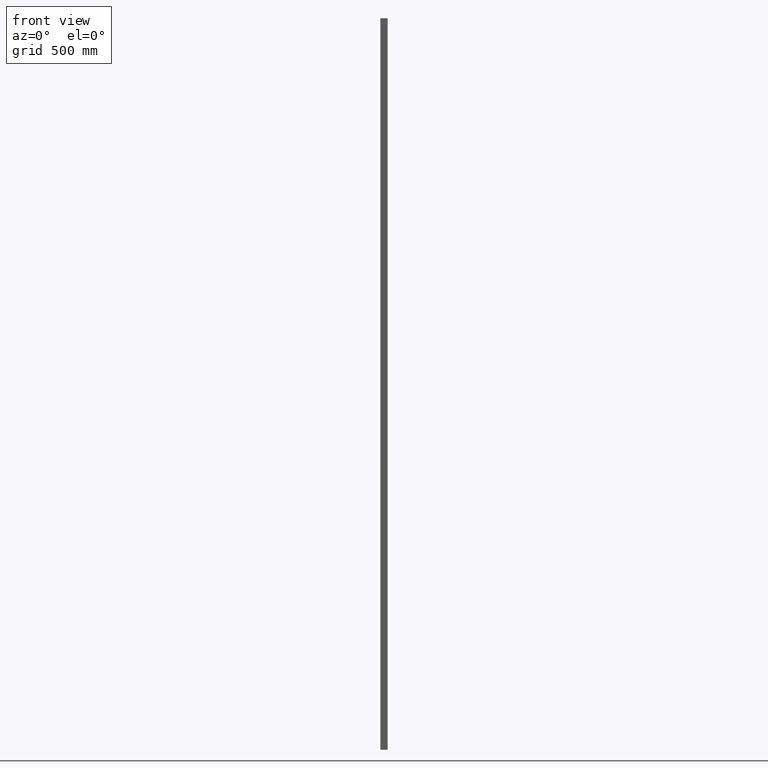
[diagram: clean part render]
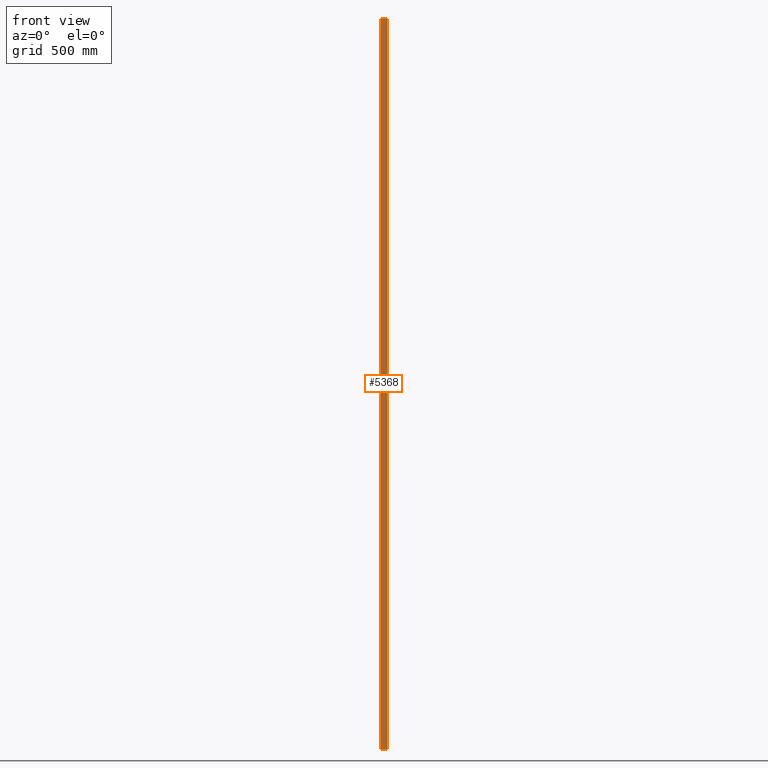
[diagram: same view with one face highlighted and labeled with its STEP entity id]
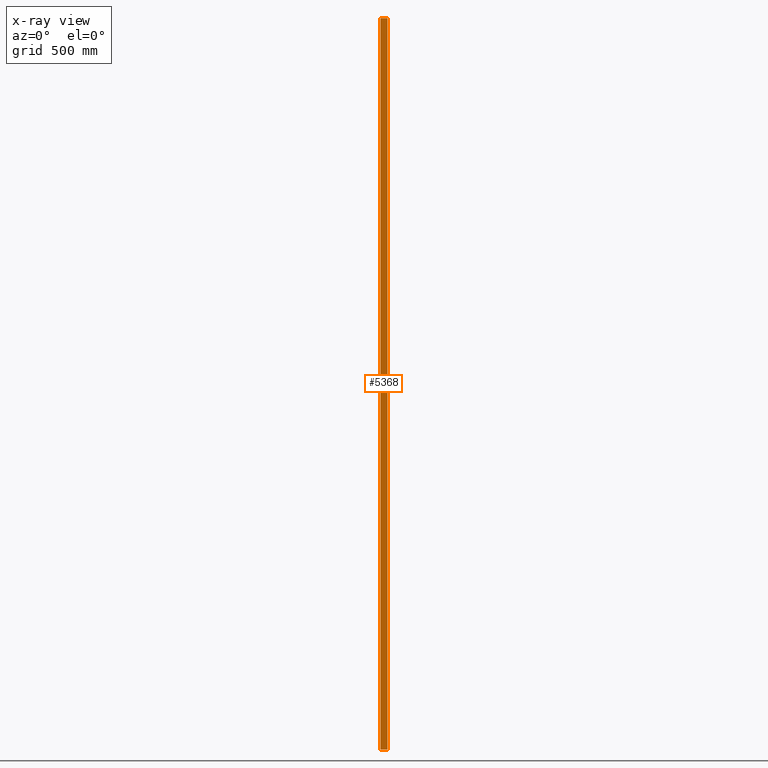
[diagram: x-ray of the same camera — body ghosted, the highlighted face saturated]
A machine part, front view. The second image highlights one B-rep face of the part: STEP entity #5368.
The next image is the same camera in x-ray: the body ghosted, the highlighted face saturated — about 0% of this face is hidden behind the body in this view.
In plain terms, the highlighted planar face has unit normal (0, -1, 0).
Its self-contained STEP definition (entity closure, byte-faithful):
#93 = EDGE_CURVE ( 'NONE', #3795, #1404, #2842, .T. ) ;
#235 = CARTESIAN_POINT ( 'NONE',  ( 30.00000000000000000, 0.0000000000000000000, 0.0000000000000000000 ) ) ;
#318 = DIRECTION ( 'NONE',  ( 0.0000000000000000000, -1.000000000000000000, 0.0000000000000000000 ) ) ;
#782 = ORIENTED_EDGE ( 'NONE', *, *, #6218, .T. ) ;
#786 = LINE ( 'NONE', #991, #6689 ) ;
#991 = CARTESIAN_POINT ( 'NONE',  ( 30.00000000000000000, 0.0000000000000000000, -3000.000000000000000 ) ) ;
#1050 = DIRECTION ( 'NONE',  ( 0.0000000000000000000, 0.0000000000000000000, 1.000000000000000000 ) ) ;
#1254 = VECTOR ( 'NONE', #4716, 1000.000000000000000 ) ;
#1404 = VERTEX_POINT ( 'NONE', #235 ) ;
#1586 = DIRECTION ( 'NONE',  ( 1.000000000000000000, 0.0000000000000000000, 0.0000000000000000000 ) ) ;
#1613 = CARTESIAN_POINT ( 'NONE',  ( 0.0000000000000000000, 0.0000000000000000000, -3000.000000000000000 ) ) ;
#1852 = FACE_OUTER_BOUND ( 'NONE', #4553, .T. ) ;
#1936 = CARTESIAN_POINT ( 'NONE',  ( 30.00000000000000000, 0.0000000000000000000, -3000.000000000000000 ) ) ;
#2216 = VECTOR ( 'NONE', #1586, 1000.000000000000000 ) ;
#2264 = EDGE_CURVE ( 'NONE', #2562, #5788, #5334, .T. ) ;
#2562 = VERTEX_POINT ( 'NONE', #5104 ) ;
#2754 = AXIS2_PLACEMENT_3D ( 'NONE', #3899, #318, #4496 ) ;
#2842 = LINE ( 'NONE', #4878, #1254 ) ;
#3795 = VERTEX_POINT ( 'NONE', #5101 ) ;
#3854 = ORIENTED_EDGE ( 'NONE', *, *, #4493, .F. ) ;
#3899 = CARTESIAN_POINT ( 'NONE',  ( 0.0000000000000000000, 0.0000000000000000000, -3000.000000000000000 ) ) ;
#3947 = ORIENTED_EDGE ( 'NONE', *, *, #93, .F. ) ;
#4470 = PLANE ( 'NONE',  #2754 ) ;
#4493 = EDGE_CURVE ( 'NONE', #2562, #3795, #5651, .T. ) ;
#4496 = DIRECTION ( 'NONE',  ( 0.0000000000000000000, -0.0000000000000000000, -1.000000000000000000 ) ) ;
#4553 = EDGE_LOOP ( 'NONE', ( #3947, #3854, #6885, #782 ) ) ;
#4716 = DIRECTION ( 'NONE',  ( 1.000000000000000000, 0.0000000000000000000, 0.0000000000000000000 ) ) ;
#4748 = DIRECTION ( 'NONE',  ( 0.0000000000000000000, 0.0000000000000000000, 1.000000000000000000 ) ) ;
#4800 = CARTESIAN_POINT ( 'NONE',  ( 0.0000000000000000000, 0.0000000000000000000, -3000.000000000000000 ) ) ;
#4878 = CARTESIAN_POINT ( 'NONE',  ( 0.0000000000000000000, 0.0000000000000000000, 0.0000000000000000000 ) ) ;
#5101 = CARTESIAN_POINT ( 'NONE',  ( 0.0000000000000000000, 0.0000000000000000000, 0.0000000000000000000 ) ) ;
#5104 = CARTESIAN_POINT ( 'NONE',  ( 0.0000000000000000000, 0.0000000000000000000, -3000.000000000000000 ) ) ;
#5334 = LINE ( 'NONE', #1613, #2216 ) ;
#5368 = ADVANCED_FACE ( 'NONE', ( #1852 ), #4470, .T. ) ;
#5651 = LINE ( 'NONE', #4800, #6862 ) ;
#5788 = VERTEX_POINT ( 'NONE', #1936 ) ;
#6218 = EDGE_CURVE ( 'NONE', #5788, #1404, #786, .T. ) ;
#6689 = VECTOR ( 'NONE', #1050, 1000.000000000000000 ) ;
#6862 = VECTOR ( 'NONE', #4748, 1000.000000000000000 ) ;
#6885 = ORIENTED_EDGE ( 'NONE', *, *, #2264, .T. ) ;